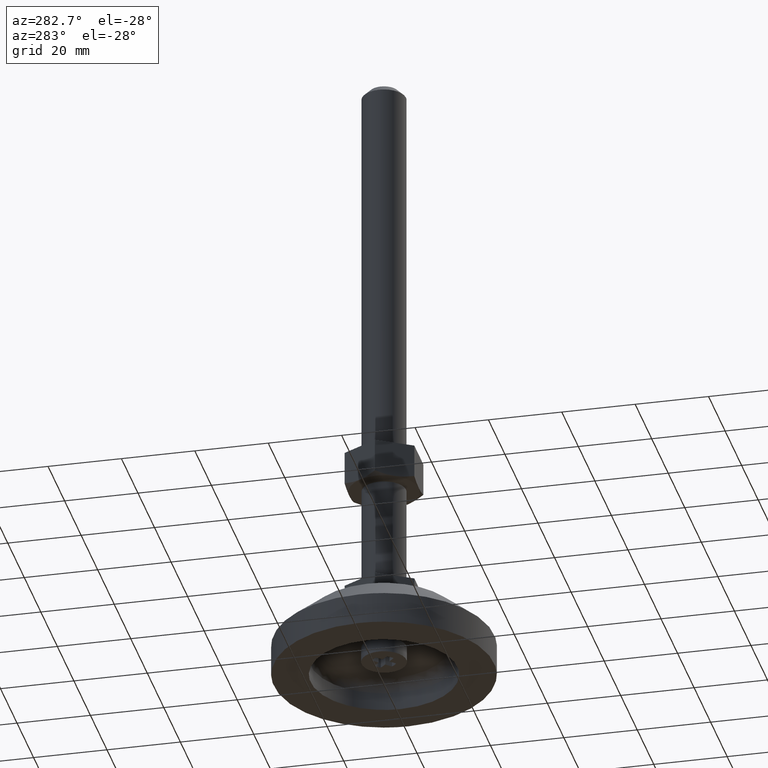
[diagram: clean part render]
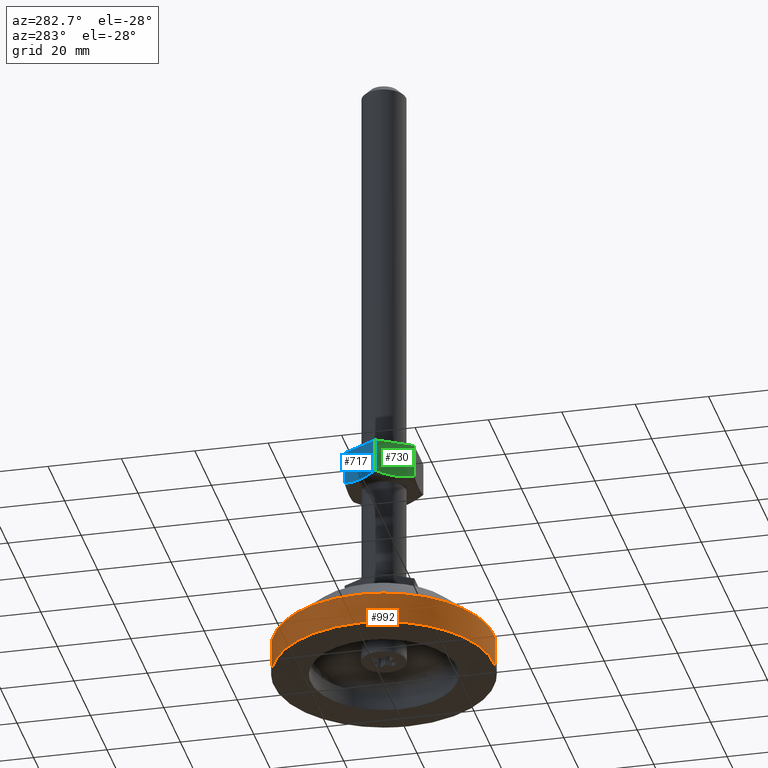
[diagram: same view with three faces highlighted in distinct colors, each labeled with its STEP entity id]
A machine part, auxiliary view with three faces highlighted in distinct colors.
Their STEP definitions:

[orange] entity #992 — the highlighted face is a freeform B-spline surface patch.
#738=CARTESIAN_POINT('',(-30.0,0.0,0.0));
#739=VERTEX_POINT('',#738);
#740=CARTESIAN_POINT('',(-1.831428777009582,29.944045629039291,-2.081668E-016));
#741=VERTEX_POINT('',#740);
#742=CARTESIAN_POINT('',(-30.0,0.0,0.0));
#743=CARTESIAN_POINT('',(-29.999999999999609,28.221207887474748,-1.040834E-016));
#744=CARTESIAN_POINT('',(-1.831428777009582,29.944045629039284,-2.081668E-016));
#752=(BOUNDED_CURVE()B_SPLINE_CURVE(2,(#742,#743,#744),.UNSPECIFIED.,.F.,.U.)B_SPLINE_CURVE_WITH_KNOTS((3,3),(0.0,0.239333120181282),.UNSPECIFIED.)CURVE()GEOMETRIC_REPRESENTATION_ITEM()RATIONAL_B_SPLINE_CURVE((1.0,0.719603808245750,0.976072380167450))REPRESENTATION_ITEM(''));
#753=EDGE_CURVE('',#739,#741,#752,.T.);
#772=CARTESIAN_POINT('',(1.831428777009578,-29.944045629039291,2.914335E-016));
#773=VERTEX_POINT('',#772);
#787=CARTESIAN_POINT('',(1.831428777009578,-29.944045629039291,2.914335E-016));
#788=CARTESIAN_POINT('',(0.916569156013669,-29.999999999987633,2.872455E-016));
#789=CARTESIAN_POINT('',(-7.480832E-013,-29.999999999987828,2.827935E-016));
#790=CARTESIAN_POINT('',(-30.000000000000359,-29.999999999994095,1.370768E-016));
#791=CARTESIAN_POINT('',(-30.0,0.0,0.0));
#799=(BOUNDED_CURVE()B_SPLINE_CURVE(2,(#787,#788,#789,#790,#791),.UNSPECIFIED.,.F.,.U.)B_SPLINE_CURVE_WITH_KNOTS((3,2,3),(0.739333120181282,0.750000000000000,1.0),.UNSPECIFIED.)CURVE()GEOMETRIC_REPRESENTATION_ITEM()RATIONAL_B_SPLINE_CURVE((0.976072380167450,0.987502972940798,1.0,0.707106781186547,1.0))REPRESENTATION_ITEM(''));
#800=EDGE_CURVE('',#773,#739,#799,.T.);
#889=CARTESIAN_POINT('',(-1.831442312438034,29.944044765886179,8.609004029567247));
#890=VERTEX_POINT('',#889);
#908=CARTESIAN_POINT('',(1.831442312438036,-29.944044765886179,8.609004029567245));
#909=VERTEX_POINT('',#908);
#923=CARTESIAN_POINT('',(1.831442312438036,-29.944044765886179,8.609004029567245));
#924=CARTESIAN_POINT('',(1.831428777009578,-29.944045629039291,2.914335E-016));
#925=QUASI_UNIFORM_CURVE('',1,(#923,#924),.UNSPECIFIED.,.F.,.U.);
#926=EDGE_CURVE('',#909,#773,#925,.T.);
#930=CARTESIAN_POINT('',(-1.831442312438034,29.944044765886179,8.609004029567247));
#931=CARTESIAN_POINT('',(-1.831428777009582,29.944045629039291,-2.081668E-016));
#932=QUASI_UNIFORM_CURVE('',1,(#930,#931),.UNSPECIFIED.,.F.,.U.);
#933=EDGE_CURVE('',#890,#741,#932,.T.);
#938=CARTESIAN_POINT('',(1.831456186045710,-29.944043952655999,8.824229100000000));
#939=CARTESIAN_POINT('',(-28.112587766610297,-31.775500138701705,8.824229100000000));
#940=CARTESIAN_POINT('',(-29.944043952655999,-1.831456186045710,8.824229100000000));
#941=CARTESIAN_POINT('',(-31.775500138701705,28.112587766610297,8.824229100000000));
#942=CARTESIAN_POINT('',(-1.831456186045710,29.944043952655999,8.824229100000000));
#943=CARTESIAN_POINT('',(1.831456186045710,-29.944043952655999,-0.220605727500001));
#944=CARTESIAN_POINT('',(-28.112587766610297,-31.775500138701705,-0.220605727500001));
#945=CARTESIAN_POINT('',(-29.944043952655999,-1.831456186045710,-0.220605727500001));
#946=CARTESIAN_POINT('',(-31.775500138701705,28.112587766610297,-0.220605727500001));
#947=CARTESIAN_POINT('',(-1.831456186045710,29.944043952655999,-0.220605727500001));
#955=(BOUNDED_SURFACE()B_SPLINE_SURFACE(2,1,((#938,#943),(#939,#944),(#940,#945),(#941,#946),(#942,#947)),.UNSPECIFIED.,.F.,.F.,.U.)B_SPLINE_SURFACE_WITH_KNOTS((3,2,3),(2,2),(0.0,49.705627484771391,99.411254969542782),(0.0,9.044834827500001),.UNSPECIFIED.)GEOMETRIC_REPRESENTATION_ITEM()RATIONAL_B_SPLINE_SURFACE(((1.0,1.0),(0.707106781186548,0.707106781186548),(1.0,1.0),(0.707106781186548,0.707106781186548),(1.0,1.0)))REPRESENTATION_ITEM('')SURFACE());
#956=CARTESIAN_POINT('',(-30.0,0.0,8.609004000000001));
#957=VERTEX_POINT('',#956);
#958=CARTESIAN_POINT('',(-30.0,0.0,8.609004000000001));
#959=CARTESIAN_POINT('',(-30.000006934652255,28.221207760943120,8.609004014783624));
#960=CARTESIAN_POINT('',(-1.831442312438034,29.944044765886176,8.609004029567247));
#968=(BOUNDED_CURVE()B_SPLINE_CURVE(2,(#958,#959,#960),.UNSPECIFIED.,.F.,.U.)B_SPLINE_CURVE_WITH_KNOTS((3,3),(0.0,0.239333122105184),.UNSPECIFIED.)CURVE()GEOMETRIC_REPRESENTATION_ITEM()RATIONAL_B_SPLINE_CURVE((1.0,0.719603805991759,0.976072384290743))REPRESENTATION_ITEM(''));
#969=EDGE_CURVE('',#957,#890,#968,.T.);
#970=ORIENTED_EDGE('',*,*,#969,.T.);
#971=ORIENTED_EDGE('',*,*,#933,.T.);
#972=ORIENTED_EDGE('',*,*,#753,.F.);
#973=ORIENTED_EDGE('',*,*,#800,.F.);
#974=ORIENTED_EDGE('',*,*,#926,.F.);
#975=CARTESIAN_POINT('',(1.831442312438036,-29.944044765886176,8.609004029567245));
#976=CARTESIAN_POINT('',(0.916582658605292,-29.999999129111334,8.609004029142353));
#977=CARTESIAN_POINT('',(0.000013458127775,-29.999999142609131,8.609004028690679));
#978=CARTESIAN_POINT('',(-29.999993476524484,-29.999999584402197,8.609004013907057));
#979=CARTESIAN_POINT('',(-30.0,0.0,8.609004000000001));
#987=(BOUNDED_CURVE()B_SPLINE_CURVE(2,(#975,#976,#977,#978,#979),.UNSPECIFIED.,.F.,.U.)B_SPLINE_CURVE_WITH_KNOTS((3,2,3),(0.739333122105184,0.750000000000000,1.0),.UNSPECIFIED.)CURVE()GEOMETRIC_REPRESENTATION_ITEM()RATIONAL_B_SPLINE_CURVE((0.976072384290743,0.987502975194789,1.0,0.707106781186547,1.0))REPRESENTATION_ITEM(''));
#988=EDGE_CURVE('',#909,#957,#987,.T.);
#989=ORIENTED_EDGE('',*,*,#988,.T.);
#990=EDGE_LOOP('',(#970,#971,#972,#973,#974,#989));
#991=FACE_OUTER_BOUND('',#990,.T.);
#992=ADVANCED_FACE('',(#991),#955,.T.);

[blue] entity #717 — the highlighted face is a freeform B-spline surface patch.
#194=CARTESIAN_POINT('',(-8.227240917976140,4.750000142069551,55.0));
#195=VERTEX_POINT('',#194);
#305=CARTESIAN_POINT('',(-5.484827000000000,9.500000000000108,55.848505520440000));
#306=VERTEX_POINT('',#305);
#321=CARTESIAN_POINT('',(-5.484827000000000,9.500000000000108,55.848505520440000));
#322=CARTESIAN_POINT('',(-5.932611144710593,8.724415173137592,55.589977235550599));
#323=CARTESIAN_POINT('',(-6.383660003523334,7.943175696034374,55.376903081825958));
#324=CARTESIAN_POINT('',(-7.067288495858541,6.759096509379010,55.155520413757330));
#325=CARTESIAN_POINT('',(-7.296343347196076,6.362361901164022,55.098136878830132));
#326=CARTESIAN_POINT('',(-7.757120668835380,5.564272233525692,55.020510672923990));
#327=CARTESIAN_POINT('',(-7.988845444250901,5.162913181528529,55.000300095702627));
#328=CARTESIAN_POINT('',(-8.223747173436712,4.756051484632068,55.000000850123591));
#329=CARTESIAN_POINT('',(-8.225493981276436,4.753025924946808,54.999999745958483));
#330=CARTESIAN_POINT('',(-8.227240917977483,4.750000142067210,54.999999762487597));
#331=B_SPLINE_CURVE_WITH_KNOTS('',3,(#321,#322,#323,#324,#325,#326,#327,#328,#329,#330),.UNSPECIFIED.,.F.,.U.,(4,2,2,2,4),(0.0,0.250000000000000,0.375000000000000,0.500000000000000,0.500936434345609),.UNSPECIFIED.);
#332=EDGE_CURVE('',#306,#195,#331,.T.);
#541=CARTESIAN_POINT('',(-10.969654999999999,7.479928E-016,55.848505615153002));
#542=VERTEX_POINT('',#541);
#543=CARTESIAN_POINT('',(-8.227240917976140,4.750000142069551,55.0));
#544=CARTESIAN_POINT('',(-8.342088961295458,4.551077511946305,55.000000849154112));
#545=CARTESIAN_POINT('',(-8.457493953636805,4.351190217897555,55.004845666648748));
#546=CARTESIAN_POINT('',(-8.689020001256656,3.950175372511586,55.024220156787280));
#547=CARTESIAN_POINT('',(-8.805251567163483,3.748856411166793,55.038873456895402));
#548=CARTESIAN_POINT('',(-9.152783160065761,3.146914083609458,55.096876893532617));
#549=CARTESIAN_POINT('',(-9.382917362980763,2.748309983773956,55.154303399235019));
#550=CARTESIAN_POINT('',(-10.069222746897561,1.559594285267157,55.376053544231290));
#551=CARTESIAN_POINT('',(-10.521312667914209,0.776551635678468,55.589655049033823));
#552=CARTESIAN_POINT('',(-10.969655000000030,-4.500579E-014,55.848505615152682));
#553=B_SPLINE_CURVE_WITH_KNOTS('',3,(#543,#544,#545,#546,#547,#548,#549,#550,#551,#552),.UNSPECIFIED.,.F.,.U.,(4,2,2,2,4),(0.500936434345609,0.562500000000000,0.625000000000000,0.750000000000000,1.0),.UNSPECIFIED.);
#554=EDGE_CURVE('',#195,#542,#553,.T.);
#580=CARTESIAN_POINT('',(-10.969654999999999,0.0,65.0));
#581=VERTEX_POINT('',#580);
#608=CARTESIAN_POINT('',(-5.484827000000000,9.500000000000108,65.0));
#609=VERTEX_POINT('',#608);
#615=CARTESIAN_POINT('',(-10.969654999999999,0.0,65.0));
#616=CARTESIAN_POINT('',(-5.484827000000000,9.500000000000108,65.0));
#617=QUASI_UNIFORM_CURVE('',1,(#615,#616),.UNSPECIFIED.,.F.,.U.);
#618=EDGE_CURVE('',#581,#609,#617,.T.);
#692=CARTESIAN_POINT('',(-5.484827000000000,9.500000000000108,65.0));
#693=CARTESIAN_POINT('',(-5.484827000000000,9.500000000000108,55.848505520440000));
#694=QUASI_UNIFORM_CURVE('',1,(#692,#693),.UNSPECIFIED.,.F.,.U.);
#695=EDGE_CURVE('',#609,#306,#694,.T.);
#701=CARTESIAN_POINT('',(-5.210859852030658,9.974524981587273,54.500500019381938));
#702=CARTESIAN_POINT('',(-11.243622295083890,-0.474525236397018,54.500500019381938));
#703=CARTESIAN_POINT('',(-5.210859852030658,9.974524981587273,65.499500248838970));
#704=CARTESIAN_POINT('',(-11.243622295083890,-0.474525236397018,65.499500248838970));
#705=B_SPLINE_SURFACE_WITH_KNOTS('',1,1,((#701,#703),(#702,#704)),.UNSPECIFIED.,.F.,.F.,.U.,(2,2),(2,2),(0.0,12.065524155720350),(0.0,10.999000229457030),.UNSPECIFIED.);
#706=ORIENTED_EDGE('',*,*,#695,.T.);
#707=ORIENTED_EDGE('',*,*,#332,.T.);
#708=ORIENTED_EDGE('',*,*,#554,.T.);
#709=CARTESIAN_POINT('',(-10.969654999999999,0.0,65.0));
#710=CARTESIAN_POINT('',(-10.969654999999999,7.479928E-016,55.848505615153002));
#711=QUASI_UNIFORM_CURVE('',1,(#709,#710),.UNSPECIFIED.,.F.,.U.);
#712=EDGE_CURVE('',#581,#542,#711,.T.);
#713=ORIENTED_EDGE('',*,*,#712,.F.);
#714=ORIENTED_EDGE('',*,*,#618,.T.);
#715=EDGE_LOOP('',(#706,#707,#708,#713,#714));
#716=FACE_OUTER_BOUND('',#715,.T.);
#717=ADVANCED_FACE('',(#716),#705,.T.);

[green] entity #730 — the highlighted face is a freeform B-spline surface patch.
#192=CARTESIAN_POINT('',(-8.227240917976038,-4.750000142069610,55.0));
#193=VERTEX_POINT('',#192);
#495=CARTESIAN_POINT('',(-5.484827000000000,-9.499999999999890,55.848505520439900));
#496=VERTEX_POINT('',#495);
#497=CARTESIAN_POINT('',(-8.227240917976038,-4.750000142069610,55.0));
#498=CARTESIAN_POINT('',(-8.112392931167415,-4.948922674313443,55.000000849188950));
#499=CARTESIAN_POINT('',(-7.996987996330014,-5.148809868762444,55.004845661841777));
#500=CARTESIAN_POINT('',(-7.765462005362447,-5.549824616023771,55.024220137699579));
#501=CARTESIAN_POINT('',(-7.649230439246872,-5.751143577730128,55.038873433089947));
#502=CARTESIAN_POINT('',(-7.301698845640712,-6.353085906506609,55.096876855911923));
#503=CARTESIAN_POINT('',(-7.071564642153546,-6.751690007333116,55.154303352864993));
#504=CARTESIAN_POINT('',(-6.385259256312820,-7.940405709172234,55.376053473600990));
#505=CARTESIAN_POINT('',(-5.933169333746267,-8.723448361445419,55.589654964975153));
#506=CARTESIAN_POINT('',(-5.484826999999972,-9.499999999999940,55.848505520439574));
#507=B_SPLINE_CURVE_WITH_KNOTS('',3,(#497,#498,#499,#500,#501,#502,#503,#504,#505,#506),.UNSPECIFIED.,.F.,.U.,(4,2,2,2,4),(0.500936464892180,0.562499999999999,0.624999999999999,0.750000000000000,1.0),.UNSPECIFIED.);
#508=EDGE_CURVE('',#193,#496,#507,.T.);
#541=CARTESIAN_POINT('',(-10.969654999999999,7.479928E-016,55.848505615153002));
#542=VERTEX_POINT('',#541);
#557=CARTESIAN_POINT('',(-10.969654999999999,7.479928E-016,55.848505615153002));
#558=CARTESIAN_POINT('',(-10.521870856972591,-0.775584823947164,55.589977319636759));
#559=CARTESIAN_POINT('',(-10.070821999693550,-1.556824298393903,55.376903152500709));
#560=CARTESIAN_POINT('',(-9.387193509194672,-2.740903481868612,55.155520460263787));
#561=CARTESIAN_POINT('',(-9.158138658389831,-3.137638089160949,55.098136916629663));
#562=CARTESIAN_POINT('',(-8.697361337594094,-3.935727755338156,55.020510692422221));
#563=CARTESIAN_POINT('',(-8.465636562488992,-4.337086806797649,55.000300105609512));
#564=CARTESIAN_POINT('',(-8.230734776492051,-4.743948602093854,55.000000850196187));
#565=CARTESIAN_POINT('',(-8.228987911668185,-4.746974260478536,54.999999745959023));
#566=CARTESIAN_POINT('',(-8.227240917974688,-4.750000142071944,54.999999762489203));
#567=B_SPLINE_CURVE_WITH_KNOTS('',3,(#557,#558,#559,#560,#561,#562,#563,#564,#565,#566),.UNSPECIFIED.,.F.,.U.,(4,2,2,2,4),(0.0,0.250000000000000,0.375000000000000,0.499999999999999,0.500936464892180),.UNSPECIFIED.);
#568=EDGE_CURVE('',#542,#193,#567,.T.);
#578=CARTESIAN_POINT('',(-5.484827000000000,-9.499999999999890,65.0));
#579=VERTEX_POINT('',#578);
#580=CARTESIAN_POINT('',(-10.969654999999999,0.0,65.0));
#581=VERTEX_POINT('',#580);
#582=CARTESIAN_POINT('',(-5.484827000000000,-9.499999999999890,65.0));
#583=CARTESIAN_POINT('',(-10.969654999999999,0.0,65.0));
#584=QUASI_UNIFORM_CURVE('',1,(#582,#583),.UNSPECIFIED.,.F.,.U.);
#585=EDGE_CURVE('',#579,#581,#584,.T.);
#634=CARTESIAN_POINT('',(-5.484827000000000,-9.499999999999890,65.0));
#635=CARTESIAN_POINT('',(-5.484827000000000,-9.499999999999890,55.848505520439900));
#636=QUASI_UNIFORM_CURVE('',1,(#634,#635),.UNSPECIFIED.,.F.,.U.);
#637=EDGE_CURVE('',#579,#496,#636,.T.);
#709=CARTESIAN_POINT('',(-10.969654999999999,0.0,65.0));
#710=CARTESIAN_POINT('',(-10.969654999999999,7.479928E-016,55.848505615153002));
#711=QUASI_UNIFORM_CURVE('',1,(#709,#710),.UNSPECIFIED.,.F.,.U.);
#712=EDGE_CURVE('',#581,#542,#711,.T.);
#718=CARTESIAN_POINT('',(-11.243622147969340,0.474524981587148,54.500500019381938));
#719=CARTESIAN_POINT('',(-5.210859704916111,-9.974525236396897,54.500500019381938));
#720=CARTESIAN_POINT('',(-11.243622147969340,0.474524981587148,65.499500248838970));
#721=CARTESIAN_POINT('',(-5.210859704916111,-9.974525236396897,65.499500248838970));
#722=B_SPLINE_SURFACE_WITH_KNOTS('',1,1,((#718,#720),(#719,#721)),.UNSPECIFIED.,.F.,.F.,.U.,(2,2),(2,2),(0.0,12.065524155720130),(0.0,10.999000229457030),.UNSPECIFIED.);
#723=ORIENTED_EDGE('',*,*,#712,.T.);
#724=ORIENTED_EDGE('',*,*,#568,.T.);
#725=ORIENTED_EDGE('',*,*,#508,.T.);
#726=ORIENTED_EDGE('',*,*,#637,.F.);
#727=ORIENTED_EDGE('',*,*,#585,.T.);
#728=EDGE_LOOP('',(#723,#724,#725,#726,#727));
#729=FACE_OUTER_BOUND('',#728,.T.);
#730=ADVANCED_FACE('',(#729),#722,.T.);